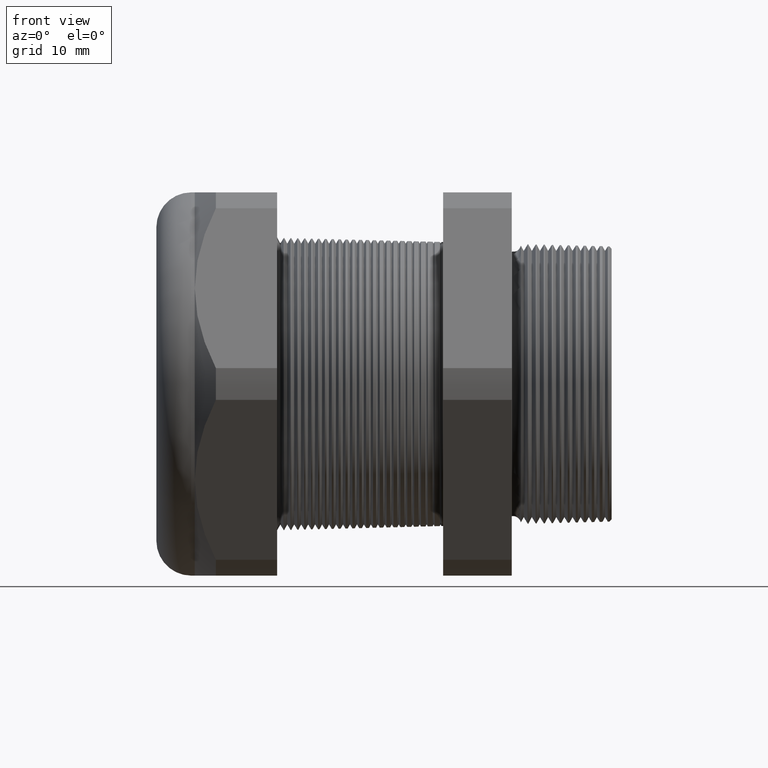
[diagram: clean part render]
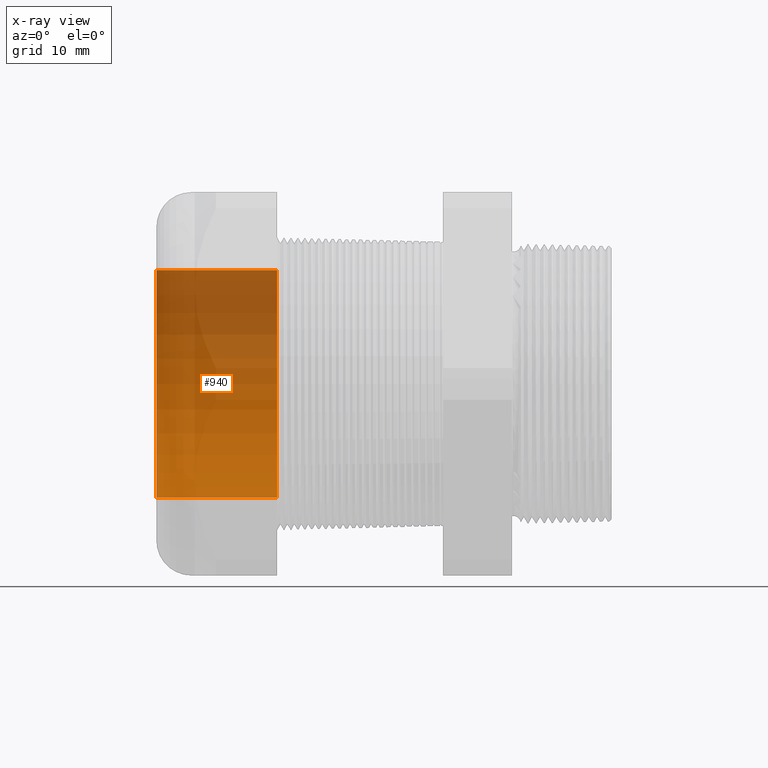
[diagram: x-ray — body ghosted, one internal face saturated and labeled with its STEP entity id]
A machine part, front view, then the same camera in x-ray: the body is ghosted and one INTERNAL B-rep face — a face not visible from any outside direction — is saturated and labeled: STEP entity #940.
In plain terms, the highlighted cylindrical surface (partial cylindrical patch) has radius 12.446 mm, axis along (1, 0, 0).
Its self-contained STEP definition (entity closure, byte-faithful):
#750 = EDGE_CURVE ( 'NONE', #1050, #1078, #3370, .T. ) ;
#823 = ORIENTED_EDGE ( 'NONE', *, *, #1052, .T. ) ;
#824 = ORIENTED_EDGE ( 'NONE', *, *, #750, .T. ) ;
#935 = ORIENTED_EDGE ( 'NONE', *, *, #938, .F. ) ;
#938 = EDGE_CURVE ( 'NONE', #1077, #1075, #3614, .T. ) ;
#939 = ORIENTED_EDGE ( 'NONE', *, *, #1079, .F. ) ;
#940 = ADVANCED_FACE ( 'NONE', ( #3609 ), #3607, .F. ) ;
#943 = EDGE_LOOP ( 'NONE', ( #939, #935, #823, #824 ) ) ;
#1050 = VERTEX_POINT ( 'NONE', #4218 ) ;
#1052 = EDGE_CURVE ( 'NONE', #1077, #1050, #4277, .T. ) ;
#1075 = VERTEX_POINT ( 'NONE', #4295 ) ;
#1077 = VERTEX_POINT ( 'NONE', #4294 ) ;
#1078 = VERTEX_POINT ( 'NONE', #4293 ) ;
#1079 = EDGE_CURVE ( 'NONE', #1075, #1078, #4292, .T. ) ;
#3367 = DIRECTION ( 'NONE',  ( 0.0000000000000000000, 0.0000000000000000000, -1.000000000000000000 ) ) ;
#3368 = DIRECTION ( 'NONE',  ( 1.000000000000000000, 0.0000000000000000000, 0.0000000000000000000 ) ) ;
#3369 = AXIS2_PLACEMENT_3D ( 'NONE', #3374, #3368, #3367 ) ;
#3370 = CIRCLE ( 'NONE', #3369, 0.4899999999999999900 ) ;
#3374 = CARTESIAN_POINT ( 'NONE',  ( -1.320314960629921200, 0.0000000000000000000, 0.0000000000000000000 ) ) ;
#3607 = CYLINDRICAL_SURFACE ( 'NONE', #3608, 0.4899999999999999900 ) ;
#3608 = AXIS2_PLACEMENT_3D ( 'NONE', #3667, #3666, #3665 ) ;
#3609 = FACE_OUTER_BOUND ( 'NONE', #943, .T. ) ;
#3610 = DIRECTION ( 'NONE',  ( 0.0000000000000000000, 0.0000000000000000000, -1.000000000000000000 ) ) ;
#3611 = DIRECTION ( 'NONE',  ( 1.000000000000000000, 0.0000000000000000000, 0.0000000000000000000 ) ) ;
#3612 = CARTESIAN_POINT ( 'NONE',  ( -1.840000000000000100, 0.0000000000000000000, 0.0000000000000000000 ) ) ;
#3613 = AXIS2_PLACEMENT_3D ( 'NONE', #3612, #3611, #3610 ) ;
#3614 = CIRCLE ( 'NONE', #3613, 0.4899999999999999900 ) ;
#3665 = DIRECTION ( 'NONE',  ( 0.0000000000000000000, 0.0000000000000000000, -1.000000000000000000 ) ) ;
#3666 = DIRECTION ( 'NONE',  ( 1.000000000000000000, 0.0000000000000000000, 0.0000000000000000000 ) ) ;
#3667 = CARTESIAN_POINT ( 'NONE',  ( 0.0000000000000000000, 0.0000000000000000000, 0.0000000000000000000 ) ) ;
#4218 = CARTESIAN_POINT ( 'NONE',  ( -1.320314960629921200, 6.000769315822029800E-017, -0.4899999999999999900 ) ) ;
#4274 = DIRECTION ( 'NONE',  ( 1.000000000000000000, 0.0000000000000000000, 0.0000000000000000000 ) ) ;
#4275 = VECTOR ( 'NONE', #4274, 39.37007874015748100 ) ;
#4276 = CARTESIAN_POINT ( 'NONE',  ( 0.0000000000000000000, 0.0000000000000000000, -0.4899999999999999900 ) ) ;
#4277 = LINE ( 'NONE', #4276, #4275 ) ;
#4289 = DIRECTION ( 'NONE',  ( 1.000000000000000000, 0.0000000000000000000, 0.0000000000000000000 ) ) ;
#4290 = VECTOR ( 'NONE', #4289, 39.37007874015748100 ) ;
#4291 = CARTESIAN_POINT ( 'NONE',  ( 0.0000000000000000000, 6.000769315822029800E-017, 0.4899999999999999900 ) ) ;
#4292 = LINE ( 'NONE', #4291, #4290 ) ;
#4293 = CARTESIAN_POINT ( 'NONE',  ( -1.320314960629921200, 0.0000000000000000000, 0.4899999999999999900 ) ) ;
#4294 = CARTESIAN_POINT ( 'NONE',  ( -1.840000000000000100, 0.0000000000000000000, -0.4899999999999999900 ) ) ;
#4295 = CARTESIAN_POINT ( 'NONE',  ( -1.840000000000000100, 6.000769315822029800E-017, 0.4899999999999999900 ) ) ;